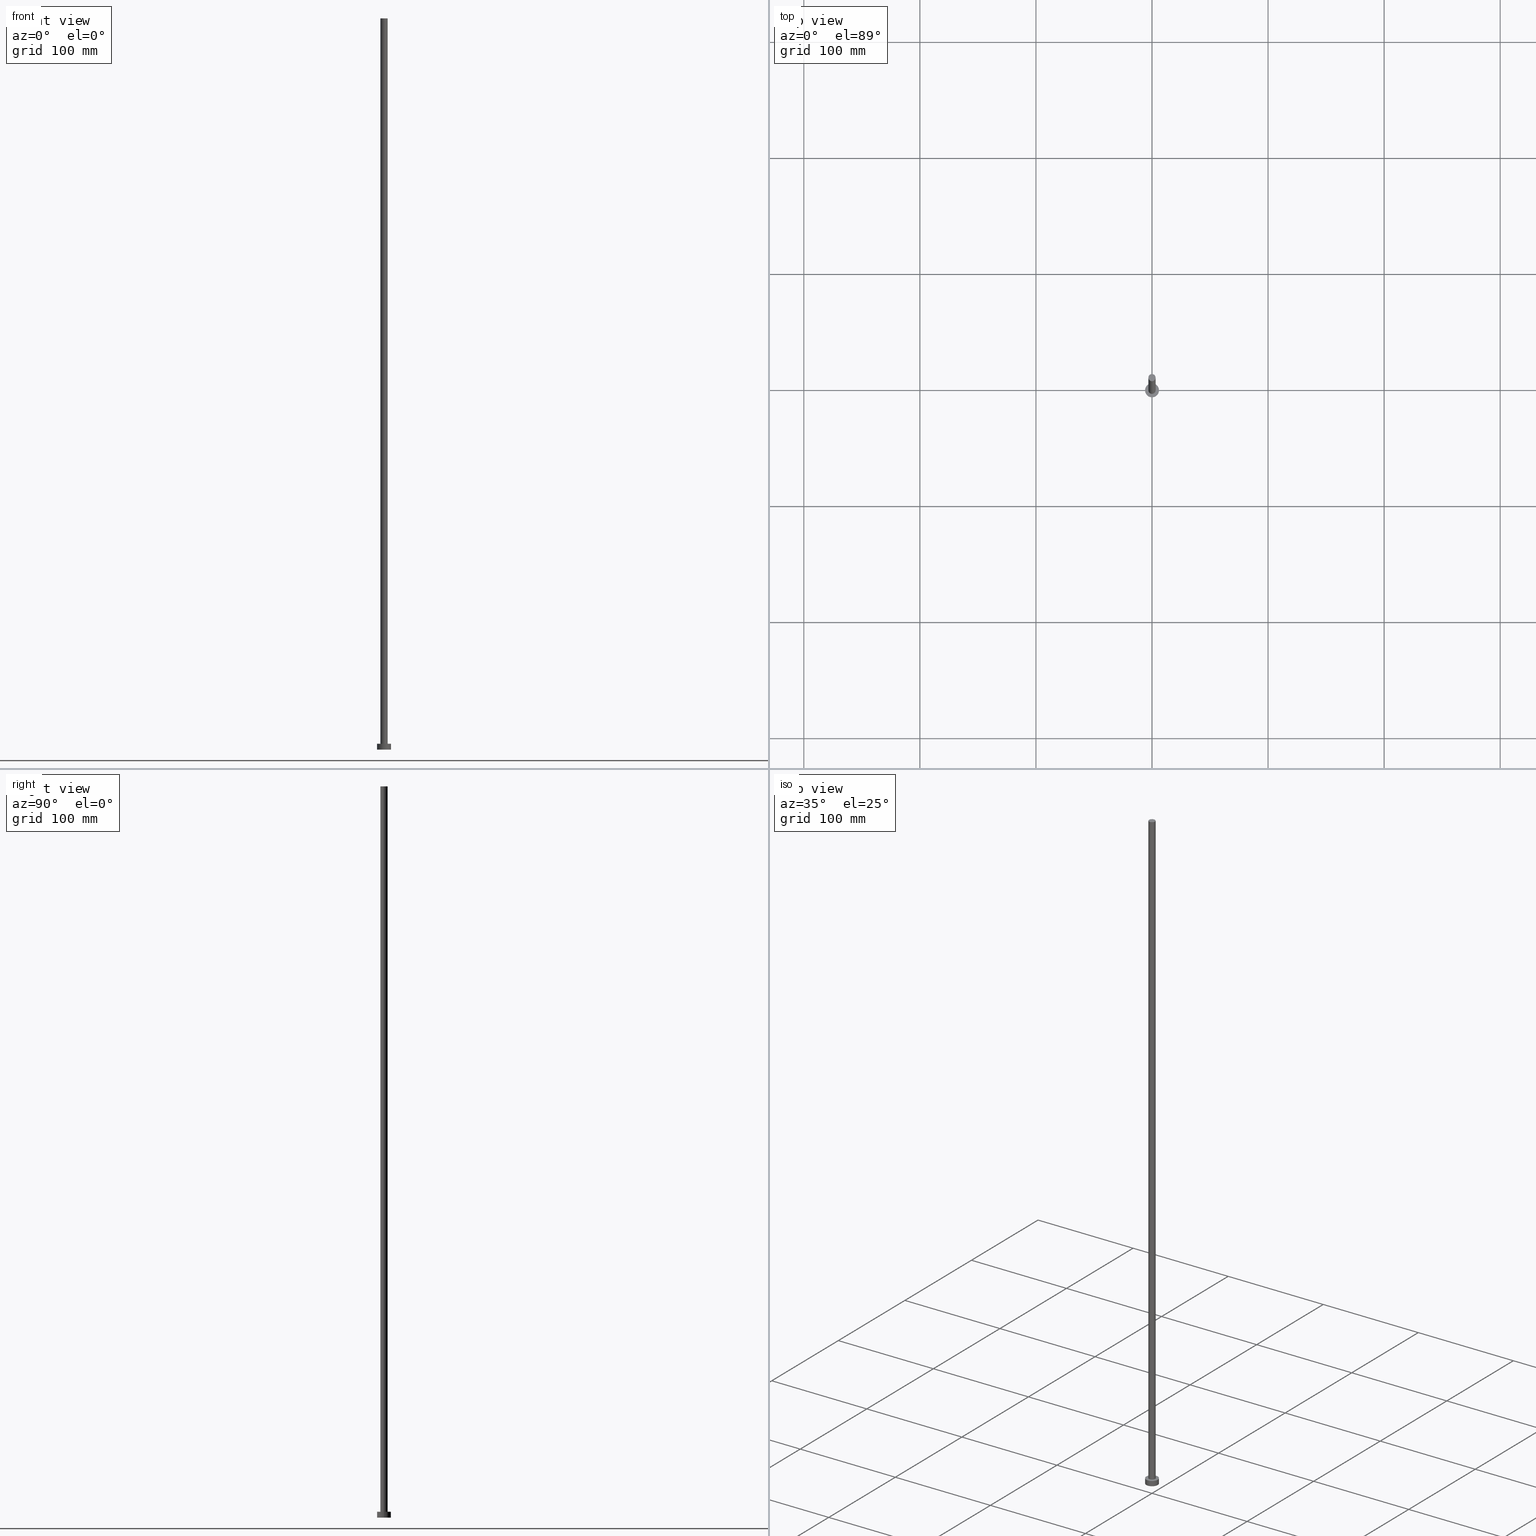
[diagram: canonical four-view strip — front | top / right | iso, engineering-drawing reading convention]
A machine part, canonical four-view strip (front | top / right | iso — engineering-drawing reading convention). The complete STEP part file that produces these views, byte-faithful:
ISO-10303-21;
HEADER;
FILE_DESCRIPTION (( 'STEP AP203' ),
    '1' );
FILE_NAME ('05db.STEP',
    '2023-02-13T15:18:37',
    ( '' ),
    ( '' ),
    'SwSTEP 2.0',
    'SolidWorks 2019',
    '' );
FILE_SCHEMA (( 'CONFIG_CONTROL_DESIGN' ));
ENDSEC;

DATA;
#1 = DIRECTION ( 'NONE',  ( 1.000000000000000000, 0.000000000000000000, 0.000000000000000000 ) ) ;
#2 = CIRCLE ( 'NONE', #24, 3.100000000000000089 ) ;
#3 =( GEOMETRIC_REPRESENTATION_CONTEXT ( 3 ) GLOBAL_UNCERTAINTY_ASSIGNED_CONTEXT ( ( #200 ) ) GLOBAL_UNIT_ASSIGNED_CONTEXT ( ( #43, #218, #25 ) ) REPRESENTATION_CONTEXT ( 'NONE', 'WORKASPACE' ) );
#4 = DIRECTION ( 'NONE',  ( 1.000000000000000000, 0.000000000000000000, 0.000000000000000000 ) ) ;
#5 = CC_DESIGN_PERSON_AND_ORGANIZATION_ASSIGNMENT ( #168, #152, ( #232 ) ) ;
#6 = DIRECTION ( 'NONE',  ( -0.000000000000000000, -0.000000000000000000, -1.000000000000000000 ) ) ;
#7 = VECTOR ( 'NONE', #91, 1000.000000000000000 ) ;
#8 = SHAPE_DEFINITION_REPRESENTATION ( #155, #226 ) ;
#9 = ORIENTED_EDGE ( 'NONE', *, *, #67, .T. ) ;
#10 = LINE ( 'NONE', #225, #7 ) ;
#11 = APPROVAL_DATE_TIME ( #195, #46 ) ;
#12 = ORIENTED_EDGE ( 'NONE', *, *, #93, .T. ) ;
#13 = CC_DESIGN_PERSON_AND_ORGANIZATION_ASSIGNMENT ( #101, #175, ( #21 ) ) ;
#14 = DATE_TIME_ROLE ( 'creation_date' ) ;
#15 = CARTESIAN_POINT ( 'NONE',  ( -6.000000000000000888, 0.000000000000000000, 0.000000000000000000 ) ) ;
#16 = AXIS2_PLACEMENT_3D ( 'NONE', #148, #85, #1 ) ;
#17 = DIRECTION ( 'NONE',  ( -1.000000000000000000, 0.000000000000000000, 0.000000000000000000 ) ) ;
#18 = EDGE_CURVE ( 'NONE', #186, #96, #194, .T. ) ;
#19 = PERSON_AND_ORGANIZATION ( #128, #75 ) ;
#20 = DIRECTION ( 'NONE',  ( 1.000000000000000000, 0.000000000000000000, -0.000000000000000000 ) ) ;
#21 = PRODUCT ( '05db', '05db', '', ( #239 ) ) ;
#22 = DIRECTION ( 'NONE',  ( 0.000000000000000000, 0.000000000000000000, 1.000000000000000000 ) ) ;
#23 = CC_DESIGN_APPROVAL ( #55, ( #165 ) ) ;
#24 = AXIS2_PLACEMENT_3D ( 'NONE', #151, #153, #121 ) ;
#25 =( NAMED_UNIT ( * ) SI_UNIT ( $, .STERADIAN. ) SOLID_ANGLE_UNIT ( ) );
#26 = ORIENTED_EDGE ( 'NONE', *, *, #29, .T. ) ;
#27 = CARTESIAN_POINT ( 'NONE',  ( 0.000000000000000000, 0.000000000000000000, 5.000000000000000000 ) ) ;
#28 = VERTEX_POINT ( 'NONE', #84 ) ;
#29 = EDGE_CURVE ( 'NONE', #70, #119, #178, .T. ) ;
#30 = APPROVAL_DATE_TIME ( #112, #71 ) ;
#31 = EDGE_LOOP ( 'NONE', ( #241, #130 ) ) ;
#32 = DIRECTION ( 'NONE',  ( 0.000000000000000000, 0.000000000000000000, 1.000000000000000000 ) ) ;
#33 = COORDINATED_UNIVERSAL_TIME_OFFSET ( 1, 0, .AHEAD. ) ;
#34 = ORIENTED_EDGE ( 'NONE', *, *, #18, .F. ) ;
#35 = COORDINATED_UNIVERSAL_TIME_OFFSET ( 1, 0, .AHEAD. ) ;
#36 = ORIENTED_EDGE ( 'NONE', *, *, #78, .T. ) ;
#37 = DIRECTION ( 'NONE',  ( 1.000000000000000000, 0.000000000000000000, 0.000000000000000000 ) ) ;
#38 = LOCAL_TIME ( 16, 18, 37.00000000000000000, #60 ) ;
#39 = PERSON_AND_ORGANIZATION ( #128, #75 ) ;
#40 = FACE_OUTER_BOUND ( 'NONE', #166, .T. ) ;
#41 = CARTESIAN_POINT ( 'NONE',  ( 0.000000000000000000, 0.000000000000000000, 0.000000000000000000 ) ) ;
#42 = DIRECTION ( 'NONE',  ( -0.000000000000000000, -0.000000000000000000, -1.000000000000000000 ) ) ;
#43 =( LENGTH_UNIT ( ) NAMED_UNIT ( * ) SI_UNIT ( .MILLI., .METRE. ) );
#44 = AXIS2_PLACEMENT_3D ( 'NONE', #41, #79, #80 ) ;
#45 = DIRECTION ( 'NONE',  ( 1.000000000000000000, 0.000000000000000000, 0.000000000000000000 ) ) ;
#46 = APPROVAL ( #76, 'NEUR�EN�' ) ;
#47 = CC_DESIGN_APPROVAL ( #71, ( #208 ) ) ;
#48 = CARTESIAN_POINT ( 'NONE',  ( 3.100000000000000089, 3.796405077356794918E-16, 630.0000000000000000 ) ) ;
#49 = ORIENTED_EDGE ( 'NONE', *, *, #144, .T. ) ;
#50 = PERSON_AND_ORGANIZATION ( #128, #75 ) ;
#51 = EDGE_CURVE ( 'NONE', #96, #186, #106, .T. ) ;
#52 = EDGE_LOOP ( 'NONE', ( #134, #118, #190, #115 ) ) ;
#53 = DIRECTION ( 'NONE',  ( -0.000000000000000000, -0.000000000000000000, -1.000000000000000000 ) ) ;
#54 = CYLINDRICAL_SURFACE ( 'NONE', #154, 6.000000000000000888 ) ;
#55 = APPROVAL ( #158, 'NEUR�EN�' ) ;
#56 = LOCAL_TIME ( 16, 18, 37.00000000000000000, #33 ) ;
#57 = VECTOR ( 'NONE', #198, 1000.000000000000000 ) ;
#58 = COORDINATED_UNIVERSAL_TIME_OFFSET ( 1, 0, .AHEAD. ) ;
#59 = LINE ( 'NONE', #107, #57 ) ;
#60 = COORDINATED_UNIVERSAL_TIME_OFFSET ( 1, 0, .AHEAD. ) ;
#61 = DIRECTION ( 'NONE',  ( 1.000000000000000000, 0.000000000000000000, -0.000000000000000000 ) ) ;
#62 = CLOSED_SHELL ( 'NONE', ( #206, #97, #209, #204, #180, #82, #181 ) ) ;
#63 = DIRECTION ( 'NONE',  ( -0.000000000000000000, -0.000000000000000000, -1.000000000000000000 ) ) ;
#64 = DIRECTION ( 'NONE',  ( -0.000000000000000000, -0.000000000000000000, -1.000000000000000000 ) ) ;
#65 = CARTESIAN_POINT ( 'NONE',  ( -6.000000000000000888, 0.000000000000000000, 5.000000000000000000 ) ) ;
#66 = VECTOR ( 'NONE', #64, 1000.000000000000000 ) ;
#67 = EDGE_CURVE ( 'NONE', #119, #217, #131, .T. ) ;
#68 = CC_DESIGN_APPROVAL ( #46, ( #232 ) ) ;
#69 = ORIENTED_EDGE ( 'NONE', *, *, #144, .F. ) ;
#70 = VERTEX_POINT ( 'NONE', #203 ) ;
#71 = APPROVAL ( #133, 'NEUR�EN�' ) ;
#72 = DIRECTION ( 'NONE',  ( -1.000000000000000000, 0.000000000000000000, 0.000000000000000000 ) ) ;
#73 = CC_DESIGN_DATE_AND_TIME_ASSIGNMENT ( #213, #14, ( #165 ) ) ;
#74 = DATE_TIME_ROLE ( 'classification_date' ) ;
#75 = ORGANIZATION ( 'NEUR�EN�', 'NEUR�EN�', '' ) ;
#76 = APPROVAL_STATUS ( 'not_yet_approved' ) ;
#77 = DIRECTION ( 'NONE',  ( 0.000000000000000000, 0.000000000000000000, 1.000000000000000000 ) ) ;
#78 = EDGE_CURVE ( 'NONE', #111, #28, #212, .T. ) ;
#79 = DIRECTION ( 'NONE',  ( 0.000000000000000000, 0.000000000000000000, 1.000000000000000000 ) ) ;
#80 = DIRECTION ( 'NONE',  ( 1.000000000000000000, 0.000000000000000000, 0.000000000000000000 ) ) ;
#81 = DIRECTION ( 'NONE',  ( 0.000000000000000000, 0.000000000000000000, 1.000000000000000000 ) ) ;
#82 = ADVANCED_FACE ( 'NONE', ( #187 ), #244, .T. ) ;
#83 = APPLICATION_CONTEXT ( 'configuration controlled 3d designs of mechanical parts and assemblies' ) ;
#84 = CARTESIAN_POINT ( 'NONE',  ( 6.000000000000000888, 7.347880794884120722E-16, 0.000000000000000000 ) ) ;
#85 = DIRECTION ( 'NONE',  ( 0.000000000000000000, 0.000000000000000000, 1.000000000000000000 ) ) ;
#86 = EDGE_LOOP ( 'NONE', ( #238, #240, #193, #12 ) ) ;
#87 = EDGE_LOOP ( 'NONE', ( #167, #34, #150, #36 ) ) ;
#88 = ORIENTED_EDGE ( 'NONE', *, *, #183, .F. ) ;
#89 = PERSON_AND_ORGANIZATION_ROLE ( 'creator' ) ;
#90 = EDGE_LOOP ( 'NONE', ( #69, #9, #117, #182 ) ) ;
#91 = DIRECTION ( 'NONE',  ( -0.000000000000000000, -0.000000000000000000, -1.000000000000000000 ) ) ;
#92 = LOCAL_TIME ( 16, 18, 37.00000000000000000, #35 ) ;
#93 = EDGE_CURVE ( 'NONE', #169, #217, #2, .T. ) ;
#94 = EDGE_CURVE ( 'NONE', #70, #169, #10, .T. ) ;
#95 = CALENDAR_DATE ( 2023, 13, 2 ) ;
#96 = VERTEX_POINT ( 'NONE', #135 ) ;
#97 = ADVANCED_FACE ( 'NONE', ( #116 ), #54, .T. ) ;
#98 = AXIS2_PLACEMENT_3D ( 'NONE', #147, #109, #4 ) ;
#99 = CARTESIAN_POINT ( 'NONE',  ( 0.000000000000000000, 0.000000000000000000, 630.0000000000000000 ) ) ;
#100 = AXIS2_PLACEMENT_3D ( 'NONE', #235, #157, #103 ) ;
#101 = PERSON_AND_ORGANIZATION ( #128, #75 ) ;
#102 = CARTESIAN_POINT ( 'NONE',  ( 0.000000000000000000, 0.000000000000000000, 630.0000000000000000 ) ) ;
#103 = DIRECTION ( 'NONE',  ( 1.000000000000000000, 0.000000000000000000, 0.000000000000000000 ) ) ;
#104 = FACE_OUTER_BOUND ( 'NONE', #90, .T. ) ;
#105 = CC_DESIGN_PERSON_AND_ORGANIZATION_ASSIGNMENT ( #196, #89, ( #232 ) ) ;
#106 = CIRCLE ( 'NONE', #16, 6.000000000000000888 ) ;
#107 = CARTESIAN_POINT ( 'NONE',  ( 6.000000000000000888, 7.347880794884120722E-16, 5.000000000000000000 ) ) ;
#108 = AXIS2_PLACEMENT_3D ( 'NONE', #102, #176, #37 ) ;
#109 = DIRECTION ( 'NONE',  ( 0.000000000000000000, 0.000000000000000000, 1.000000000000000000 ) ) ;
#110 = AXIS2_PLACEMENT_3D ( 'NONE', #220, #32, #242 ) ;
#111 = VERTEX_POINT ( 'NONE', #15 ) ;
#112 = DATE_AND_TIME ( #188, #56 ) ;
#113 = LOCAL_TIME ( 16, 18, 37.00000000000000000, #222 ) ;
#114 = CIRCLE ( 'NONE', #100, 3.100000000000000089 ) ;
#115 = ORIENTED_EDGE ( 'NONE', *, *, #221, .F. ) ;
#116 = FACE_OUTER_BOUND ( 'NONE', #52, .T. ) ;
#117 = ORIENTED_EDGE ( 'NONE', *, *, #183, .T. ) ;
#118 = ORIENTED_EDGE ( 'NONE', *, *, #140, .T. ) ;
#119 = VERTEX_POINT ( 'NONE', #143 ) ;
#120 = CIRCLE ( 'NONE', #44, 6.000000000000000888 ) ;
#121 = DIRECTION ( 'NONE',  ( 1.000000000000000000, 0.000000000000000000, 0.000000000000000000 ) ) ;
#122 = AXIS2_PLACEMENT_3D ( 'NONE', #207, #230, #72 ) ;
#123 = DATE_AND_TIME ( #249, #162 ) ;
#124 = PLANE ( 'NONE',  #185 ) ;
#125 = CC_DESIGN_PERSON_AND_ORGANIZATION_ASSIGNMENT ( #197, #141, ( #165 ) ) ;
#126 = CARTESIAN_POINT ( 'NONE',  ( -3.100000000000000089, 0.000000000000000000, 5.000000000000000000 ) ) ;
#127 = CC_DESIGN_SECURITY_CLASSIFICATION ( #208, ( #232 ) ) ;
#128 = PERSON ( 'NEUR�EN�', 'NEUR�EN�', 'NEUR�EN�', ('NEUR�EN�'), ('NEUR�EN�'), ('NEUR�EN�') ) ;
#129 = DESIGN_CONTEXT ( 'detailed design', #189, 'design' ) ;
#130 = ORIENTED_EDGE ( 'NONE', *, *, #51, .T. ) ;
#131 = LINE ( 'NONE', #48, #227 ) ;
#132 = EDGE_LOOP ( 'NONE', ( #219, #88 ) ) ;
#133 = APPROVAL_STATUS ( 'not_yet_approved' ) ;
#134 = ORIENTED_EDGE ( 'NONE', *, *, #51, .F. ) ;
#135 = CARTESIAN_POINT ( 'NONE',  ( 6.000000000000000888, 7.347880794884120722E-16, 5.000000000000000000 ) ) ;
#136 = AXIS2_PLACEMENT_3D ( 'NONE', #146, #42, #216 ) ;
#137 = PERSON_AND_ORGANIZATION ( #128, #75 ) ;
#138 = CARTESIAN_POINT ( 'NONE',  ( 0.000000000000000000, 0.000000000000000000, 5.000000000000000000 ) ) ;
#139 = AXIS2_PLACEMENT_3D ( 'NONE', #164, #237, #191 ) ;
#140 = EDGE_CURVE ( 'NONE', #96, #28, #59, .T. ) ;
#141 = PERSON_AND_ORGANIZATION_ROLE ( 'creator' ) ;
#142 = PLANE ( 'NONE',  #163 ) ;
#143 = CARTESIAN_POINT ( 'NONE',  ( 3.100000000000000089, 3.796405077356794918E-16, 630.0000000000000000 ) ) ;
#144 = EDGE_CURVE ( 'NONE', #119, #70, #161, .T. ) ;
#145 = FACE_BOUND ( 'NONE', #132, .T. ) ;
#146 = CARTESIAN_POINT ( 'NONE',  ( 0.000000000000000000, 0.000000000000000000, 5.000000000000000000 ) ) ;
#147 = CARTESIAN_POINT ( 'NONE',  ( 0.000000000000000000, 0.000000000000000000, 630.0000000000000000 ) ) ;
#148 = CARTESIAN_POINT ( 'NONE',  ( 0.000000000000000000, 0.000000000000000000, 5.000000000000000000 ) ) ;
#149 = EDGE_CURVE ( 'NONE', #28, #111, #120, .T. ) ;
#150 = ORIENTED_EDGE ( 'NONE', *, *, #221, .T. ) ;
#151 = CARTESIAN_POINT ( 'NONE',  ( 0.000000000000000000, 0.000000000000000000, 5.000000000000000000 ) ) ;
#152 = PERSON_AND_ORGANIZATION_ROLE ( 'design_supplier' ) ;
#153 = DIRECTION ( 'NONE',  ( 0.000000000000000000, 0.000000000000000000, 1.000000000000000000 ) ) ;
#154 = AXIS2_PLACEMENT_3D ( 'NONE', #138, #53, #17 ) ;
#155 = PRODUCT_DEFINITION_SHAPE ( 'NONE', 'NONE',  #165 ) ;
#156 = APPROVAL_ROLE ( '' ) ;
#157 = DIRECTION ( 'NONE',  ( 0.000000000000000000, 0.000000000000000000, 1.000000000000000000 ) ) ;
#158 = APPROVAL_STATUS ( 'not_yet_approved' ) ;
#159 = PLANE ( 'NONE',  #248 ) ;
#160 = APPROVAL_PERSON_ORGANIZATION ( #39, #46, #156 ) ;
#161 = CIRCLE ( 'NONE', #108, 3.100000000000000089 ) ;
#162 = LOCAL_TIME ( 16, 18, 37.00000000000000000, #58 ) ;
#163 = AXIS2_PLACEMENT_3D ( 'NONE', #215, #22, #236 ) ;
#164 = CARTESIAN_POINT ( 'NONE',  ( 0.000000000000000000, 0.000000000000000000, 0.000000000000000000 ) ) ;
#165 = PRODUCT_DEFINITION ( 'NEZN�M�', '', #232, #129 ) ;
#166 = EDGE_LOOP ( 'NONE', ( #26, #49 ) ) ;
#167 = ORIENTED_EDGE ( 'NONE', *, *, #140, .F. ) ;
#168 = PERSON_AND_ORGANIZATION ( #128, #75 ) ;
#169 = VERTEX_POINT ( 'NONE', #126 ) ;
#170 = CC_DESIGN_DATE_AND_TIME_ASSIGNMENT ( #246, #74, ( #208 ) ) ;
#171 = AXIS2_PLACEMENT_3D ( 'NONE', #99, #63, #254 ) ;
#172 = APPROVAL_ROLE ( '' ) ;
#173 = FACE_OUTER_BOUND ( 'NONE', #87, .T. ) ;
#174 = APPROVAL_PERSON_ORGANIZATION ( #50, #71, #205 ) ;
#175 = PERSON_AND_ORGANIZATION_ROLE ( 'design_owner' ) ;
#176 = DIRECTION ( 'NONE',  ( 0.000000000000000000, 0.000000000000000000, 1.000000000000000000 ) ) ;
#177 = CARTESIAN_POINT ( 'NONE',  ( 0.000000000000000000, 0.000000000000000000, 630.0000000000000000 ) ) ;
#178 = CIRCLE ( 'NONE', #98, 3.100000000000000089 ) ;
#179 = CYLINDRICAL_SURFACE ( 'NONE', #171, 3.100000000000000089 ) ;
#180 = ADVANCED_FACE ( 'NONE', ( #214 ), #159, .F. ) ;
#181 = ADVANCED_FACE ( 'NONE', ( #40 ), #124, .T. ) ;
#182 = ORIENTED_EDGE ( 'NONE', *, *, #94, .F. ) ;
#183 = EDGE_CURVE ( 'NONE', #217, #169, #114, .T. ) ;
#184 = DIRECTION ( 'NONE',  ( 0.000000000000000000, 0.000000000000000000, 1.000000000000000000 ) ) ;
#185 = AXIS2_PLACEMENT_3D ( 'NONE', #177, #81, #20 ) ;
#186 = VERTEX_POINT ( 'NONE', #252 ) ;
#187 = FACE_OUTER_BOUND ( 'NONE', #86, .T. ) ;
#188 = CALENDAR_DATE ( 2023, 13, 2 ) ;
#189 = APPLICATION_CONTEXT ( 'configuration controlled 3d designs of mechanical parts and assemblies' ) ;
#190 = ORIENTED_EDGE ( 'NONE', *, *, #149, .T. ) ;
#191 = DIRECTION ( 'NONE',  ( 1.000000000000000000, 0.000000000000000000, 0.000000000000000000 ) ) ;
#192 = CALENDAR_DATE ( 2023, 13, 2 ) ;
#193 = ORIENTED_EDGE ( 'NONE', *, *, #94, .T. ) ;
#194 = CIRCLE ( 'NONE', #253, 6.000000000000000888 ) ;
#195 = DATE_AND_TIME ( #192, #92 ) ;
#196 = PERSON_AND_ORGANIZATION ( #128, #75 ) ;
#197 = PERSON_AND_ORGANIZATION ( #128, #75 ) ;
#198 = DIRECTION ( 'NONE',  ( -0.000000000000000000, -0.000000000000000000, -1.000000000000000000 ) ) ;
#199 = CARTESIAN_POINT ( 'NONE',  ( 0.000000000000000000, 0.000000000000000000, 0.000000000000000000 ) ) ;
#200 = UNCERTAINTY_MEASURE_WITH_UNIT (LENGTH_MEASURE( 1.000000000000000082E-05 ), #43, 'distance_accuracy_value', 'NONE');
#201 = APPLICATION_PROTOCOL_DEFINITION ( 'international standard', 'config_control_design', 1994, #83 ) ;
#202 = APPROVAL_PERSON_ORGANIZATION ( #19, #55, #172 ) ;
#203 = CARTESIAN_POINT ( 'NONE',  ( -3.100000000000000089, 0.000000000000000000, 630.0000000000000000 ) ) ;
#204 = ADVANCED_FACE ( 'NONE', ( #145, #255 ), #142, .T. ) ;
#205 = APPROVAL_ROLE ( '' ) ;
#206 = ADVANCED_FACE ( 'NONE', ( #104 ), #179, .T. ) ;
#207 = CARTESIAN_POINT ( 'NONE',  ( 0.000000000000000000, 0.000000000000000000, 630.0000000000000000 ) ) ;
#208 = SECURITY_CLASSIFICATION ( '', '', #229 ) ;
#209 = ADVANCED_FACE ( 'NONE', ( #173 ), #250, .T. ) ;
#210 = CALENDAR_DATE ( 2023, 13, 2 ) ;
#211 = LINE ( 'NONE', #65, #66 ) ;
#212 = CIRCLE ( 'NONE', #139, 6.000000000000000888 ) ;
#213 = DATE_AND_TIME ( #210, #38 ) ;
#214 = FACE_OUTER_BOUND ( 'NONE', #224, .T. ) ;
#215 = CARTESIAN_POINT ( 'NONE',  ( 0.000000000000000000, 0.000000000000000000, 5.000000000000000000 ) ) ;
#216 = DIRECTION ( 'NONE',  ( -1.000000000000000000, 0.000000000000000000, 0.000000000000000000 ) ) ;
#217 = VERTEX_POINT ( 'NONE', #234 ) ;
#218 =( NAMED_UNIT ( * ) PLANE_ANGLE_UNIT ( ) SI_UNIT ( $, .RADIAN. ) );
#219 = ORIENTED_EDGE ( 'NONE', *, *, #93, .F. ) ;
#220 = CARTESIAN_POINT ( 'NONE',  ( 0.000000000000000000, 0.000000000000000000, 0.000000000000000000 ) ) ;
#221 = EDGE_CURVE ( 'NONE', #186, #111, #211, .T. ) ;
#222 = COORDINATED_UNIVERSAL_TIME_OFFSET ( 1, 0, .AHEAD. ) ;
#223 = CC_DESIGN_PERSON_AND_ORGANIZATION_ASSIGNMENT ( #137, #231, ( #208 ) ) ;
#224 = EDGE_LOOP ( 'NONE', ( #243, #228 ) ) ;
#225 = CARTESIAN_POINT ( 'NONE',  ( -3.100000000000000089, 0.000000000000000000, 630.0000000000000000 ) ) ;
#226 = ADVANCED_BREP_SHAPE_REPRESENTATION ( '05db', ( #245, #110 ), #3 ) ;
#227 = VECTOR ( 'NONE', #6, 1000.000000000000000 ) ;
#228 = ORIENTED_EDGE ( 'NONE', *, *, #149, .F. ) ;
#229 = SECURITY_CLASSIFICATION_LEVEL ( 'unclassified' ) ;
#230 = DIRECTION ( 'NONE',  ( -0.000000000000000000, -0.000000000000000000, -1.000000000000000000 ) ) ;
#231 = PERSON_AND_ORGANIZATION_ROLE ( 'classification_officer' ) ;
#232 = PRODUCT_DEFINITION_FORMATION_WITH_SPECIFIED_SOURCE ( 'LIBOVOLN�', '', #21, .NOT_KNOWN. ) ;
#233 = APPROVAL_DATE_TIME ( #123, #55 ) ;
#234 = CARTESIAN_POINT ( 'NONE',  ( 3.100000000000000089, 3.796405077356794918E-16, 5.000000000000000000 ) ) ;
#235 = CARTESIAN_POINT ( 'NONE',  ( 0.000000000000000000, 0.000000000000000000, 5.000000000000000000 ) ) ;
#236 = DIRECTION ( 'NONE',  ( 1.000000000000000000, 0.000000000000000000, -0.000000000000000000 ) ) ;
#237 = DIRECTION ( 'NONE',  ( 0.000000000000000000, 0.000000000000000000, 1.000000000000000000 ) ) ;
#238 = ORIENTED_EDGE ( 'NONE', *, *, #67, .F. ) ;
#239 = MECHANICAL_CONTEXT ( 'NONE', #83, 'mechanical' ) ;
#240 = ORIENTED_EDGE ( 'NONE', *, *, #29, .F. ) ;
#241 = ORIENTED_EDGE ( 'NONE', *, *, #18, .T. ) ;
#242 = DIRECTION ( 'NONE',  ( 1.000000000000000000, 0.000000000000000000, 0.000000000000000000 ) ) ;
#243 = ORIENTED_EDGE ( 'NONE', *, *, #78, .F. ) ;
#244 = CYLINDRICAL_SURFACE ( 'NONE', #122, 3.100000000000000089 ) ;
#245 = MANIFOLD_SOLID_BREP ( 'P�idat vysunut�m3', #62 ) ;
#246 = DATE_AND_TIME ( #95, #113 ) ;
#247 = PRODUCT_RELATED_PRODUCT_CATEGORY ( 'detail', '', ( #21 ) ) ;
#248 = AXIS2_PLACEMENT_3D ( 'NONE', #199, #77, #61 ) ;
#249 = CALENDAR_DATE ( 2023, 13, 2 ) ;
#250 = CYLINDRICAL_SURFACE ( 'NONE', #136, 6.000000000000000888 ) ;
#251 = APPLICATION_PROTOCOL_DEFINITION ( 'international standard', 'config_control_design', 1994, #189 ) ;
#252 = CARTESIAN_POINT ( 'NONE',  ( -6.000000000000000888, 0.000000000000000000, 5.000000000000000000 ) ) ;
#253 = AXIS2_PLACEMENT_3D ( 'NONE', #27, #184, #45 ) ;
#254 = DIRECTION ( 'NONE',  ( -1.000000000000000000, 0.000000000000000000, 0.000000000000000000 ) ) ;
#255 = FACE_OUTER_BOUND ( 'NONE', #31, .T. ) ;
ENDSEC;
END-ISO-10303-21;
